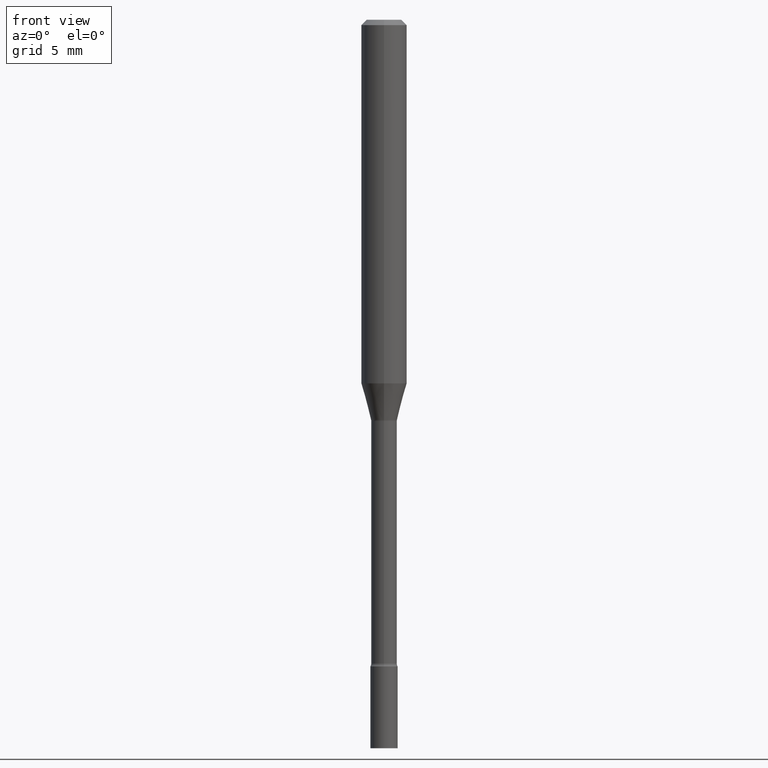
[diagram: clean part render]
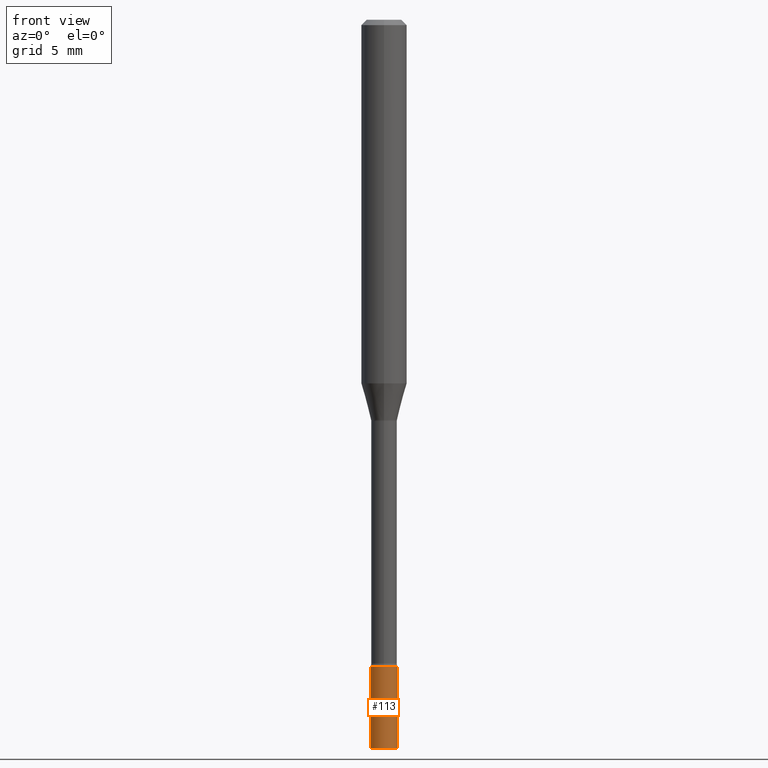
[diagram: same view with one face highlighted and labeled with its STEP entity id]
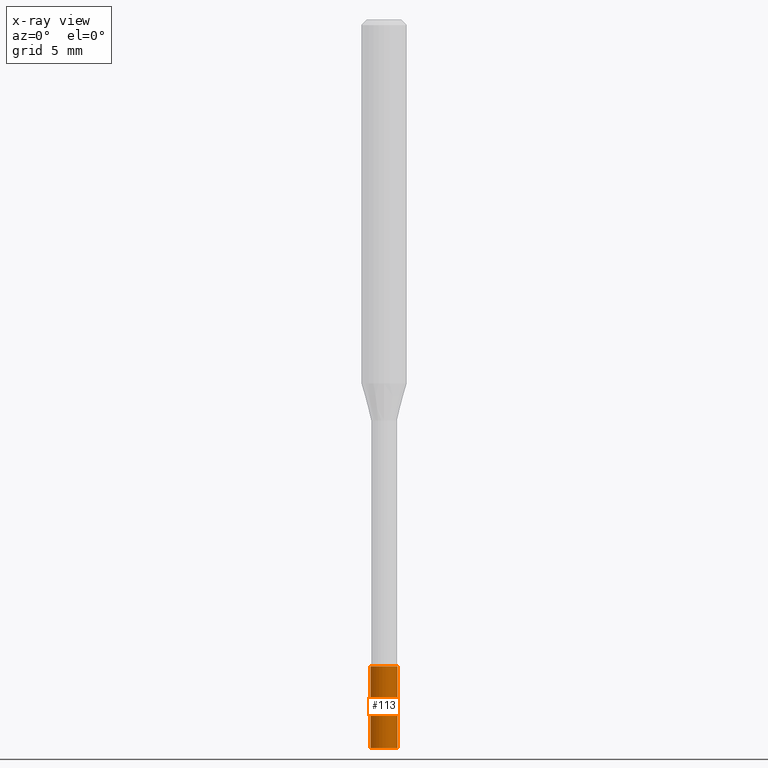
[diagram: x-ray of the same camera — body ghosted, the highlighted face saturated]
A machine part, front view. The second image highlights one B-rep face of the part: STEP entity #113.
The next image is the same camera in x-ray: the body ghosted, the highlighted face saturated — about 0% of this face is hidden behind the body in this view.
In plain terms, the highlighted cylindrical surface (edge-blend (fillet) strip) has radius 0.9525 mm, axis along (-0, 0, 1).
Its self-contained STEP definition (entity closure, byte-faithful):
#4 = CIRCLE ( 'NONE', #75, 0.03749999999999999861 ) ;
#6 = CARTESIAN_POINT ( 'NONE',  ( -0.03749999999999999861, -6.323717501156401251E-15, -2.000000000000000000 ) ) ;
#9 = DIRECTION ( 'NONE',  ( 1.000000000000000000, -6.982962677686268288E-15, 0.000000000000000000 ) ) ;
#26 = EDGE_CURVE ( 'NONE', #491, #438, #204, .T. ) ;
#29 = CARTESIAN_POINT ( 'NONE',  ( 4.890937612370273194E-29, -6.982962677686291165E-15, -2.000000000000000000 ) ) ;
#63 = CYLINDRICAL_SURFACE ( 'NONE', #261, 0.03749999999999999861 ) ;
#75 = AXIS2_PLACEMENT_3D ( 'NONE', #29, #234, #9 ) ;
#78 = DIRECTION ( 'NONE',  ( -2.445468806185136877E-29, 3.491481338843145188E-15, 1.000000000000000000 ) ) ;
#79 = DIRECTION ( 'NONE',  ( -2.445468806185136877E-29, 3.491481338843145188E-15, 1.000000000000000000 ) ) ;
#99 = VECTOR ( 'NONE', #79, 39.37007874015748143 ) ;
#102 = FACE_OUTER_BOUND ( 'NONE', #201, .T. ) ;
#113 = ADVANCED_FACE ( 'NONE', ( #102 ), #63, .T. ) ;
#122 = CARTESIAN_POINT ( 'NONE',  ( 0.03749999999999999861, -2.618611004132350016E-16, 1.828566290923475922E-30 ) ) ;
#145 = CARTESIAN_POINT ( 'NONE',  ( 0.000000000000000000, 0.000000000000000000, 0.000000000000000000 ) ) ;
#148 = ORIENTED_EDGE ( 'NONE', *, *, #225, .T. ) ;
#178 = CARTESIAN_POINT ( 'NONE',  ( 0.03749999999999999861, -7.244823778099525378E-15, -2.000000000000000000 ) ) ;
#186 = AXIS2_PLACEMENT_3D ( 'NONE', #260, #456, #457 ) ;
#201 = EDGE_LOOP ( 'NONE', ( #520, #148, #400, #362 ) ) ;
#204 = LINE ( 'NONE', #122, #99 ) ;
#219 = CARTESIAN_POINT ( 'NONE',  ( -0.03749999999999999861, -6.323717501156401251E-15, -1.775000000000000133 ) ) ;
#225 = EDGE_CURVE ( 'NONE', #459, #491, #4, .T. ) ;
#234 = DIRECTION ( 'NONE',  ( -2.445468806185136597E-29, 3.491481338843145583E-15, 1.000000000000000000 ) ) ;
#260 = CARTESIAN_POINT ( 'NONE',  ( 4.340707130978617347E-29, -6.197379376446583794E-15, -1.775000000000000133 ) ) ;
#261 = AXIS2_PLACEMENT_3D ( 'NONE', #145, #464, #386 ) ;
#279 = LINE ( 'NONE', #439, #305 ) ;
#293 = CARTESIAN_POINT ( 'NONE',  ( 0.03749999999999999861, -6.459240476859818795E-15, -1.775000000000000133 ) ) ;
#305 = VECTOR ( 'NONE', #78, 39.37007874015748143 ) ;
#338 = CIRCLE ( 'NONE', #186, 0.03749999999999999861 ) ;
#362 = ORIENTED_EDGE ( 'NONE', *, *, #489, .F. ) ;
#367 = VERTEX_POINT ( 'NONE', #219 ) ;
#386 = DIRECTION ( 'NONE',  ( 1.000000000000000000, -6.982962677686266711E-15, 4.876176775795935793E-29 ) ) ;
#400 = ORIENTED_EDGE ( 'NONE', *, *, #26, .T. ) ;
#417 = EDGE_CURVE ( 'NONE', #459, #367, #279, .T. ) ;
#438 = VERTEX_POINT ( 'NONE', #293 ) ;
#439 = CARTESIAN_POINT ( 'NONE',  ( -0.03749999999999999861, 2.664535259100375598E-16, -1.844600658845589458E-30 ) ) ;
#456 = DIRECTION ( 'NONE',  ( -2.445468806185136597E-29, 3.491481338843145583E-15, 1.000000000000000000 ) ) ;
#457 = DIRECTION ( 'NONE',  ( 1.000000000000000000, -6.982962677686268288E-15, 0.000000000000000000 ) ) ;
#459 = VERTEX_POINT ( 'NONE', #6 ) ;
#464 = DIRECTION ( 'NONE',  ( -2.445468806185136597E-29, 3.491481338843145583E-15, 1.000000000000000000 ) ) ;
#489 = EDGE_CURVE ( 'NONE', #367, #438, #338, .T. ) ;
#491 = VERTEX_POINT ( 'NONE', #178 ) ;
#520 = ORIENTED_EDGE ( 'NONE', *, *, #417, .F. ) ;